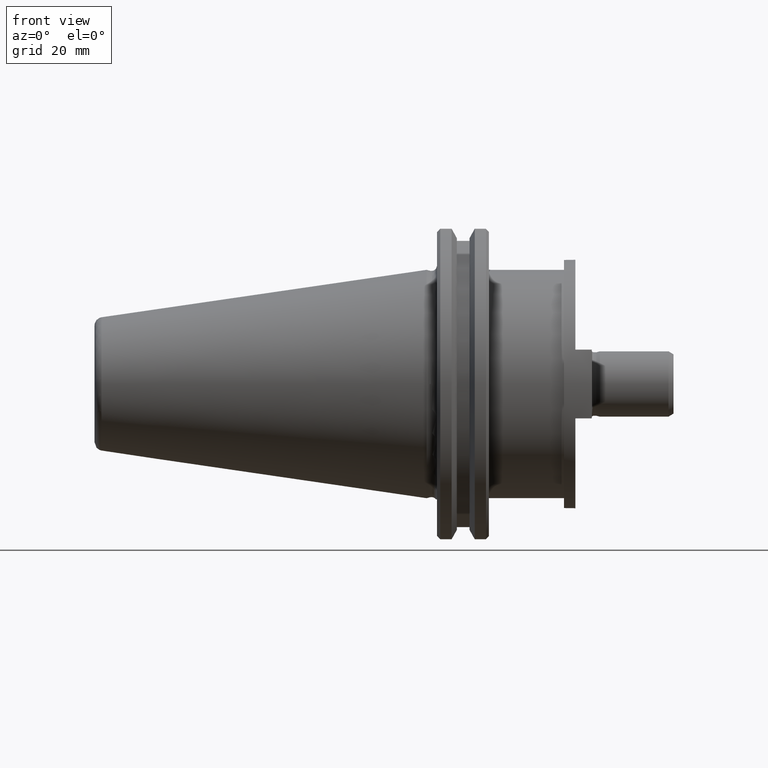
[diagram: clean part render]
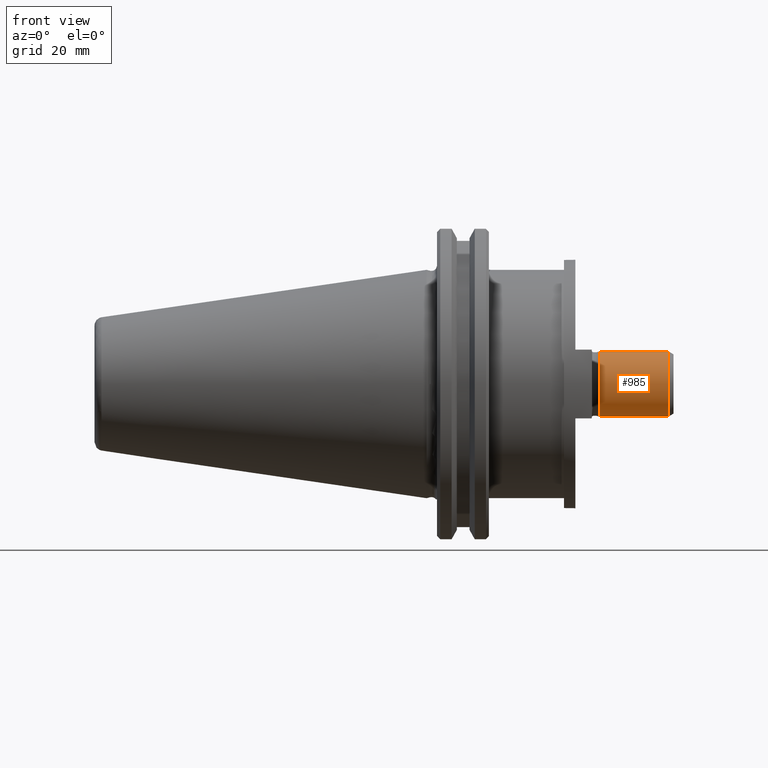
[diagram: same view with one face highlighted and labeled with its STEP entity id]
A machine part, front view. The second image highlights one B-rep face of the part: STEP entity #985.
In plain terms, the highlighted cylindrical surface (bore or boss wall) has radius 10 mm, axis along (1, 0, 0).
Its self-contained STEP definition (entity closure, byte-faithful):
#42=CYLINDRICAL_SURFACE('',#1133,10.);
#113=FACE_OUTER_BOUND('',#178,.T.);
#178=EDGE_LOOP('',(#896,#897,#898,#899,#900));
#250=CIRCLE('',#1132,10.);
#251=CIRCLE('',#1134,10.);
#252=CIRCLE('',#1135,10.);
#313=LINE('',#1783,#374);
#374=VECTOR('',#1456,10.);
#474=VERTEX_POINT('',#1775);
#475=VERTEX_POINT('',#1779);
#476=VERTEX_POINT('',#1780);
#614=EDGE_CURVE('',#474,#474,#250,.T.);
#616=EDGE_CURVE('',#475,#476,#251,.T.);
#617=EDGE_CURVE('',#476,#475,#252,.T.);
#618=EDGE_CURVE('',#476,#474,#313,.T.);
#896=ORIENTED_EDGE('',*,*,#616,.F.);
#897=ORIENTED_EDGE('',*,*,#617,.F.);
#898=ORIENTED_EDGE('',*,*,#618,.T.);
#899=ORIENTED_EDGE('',*,*,#614,.F.);
#900=ORIENTED_EDGE('',*,*,#618,.F.);
#985=ADVANCED_FACE('',(#113),#42,.T.);
#1132=AXIS2_PLACEMENT_3D('',#1776,#1447,#1448);
#1133=AXIS2_PLACEMENT_3D('',#1778,#1450,#1451);
#1134=AXIS2_PLACEMENT_3D('',#1781,#1452,#1453);
#1135=AXIS2_PLACEMENT_3D('',#1782,#1454,#1455);
#1447=DIRECTION('center_axis',(-1.,0.,0.));
#1448=DIRECTION('ref_axis',(0.,0.,1.));
#1450=DIRECTION('center_axis',(1.,0.,0.));
#1451=DIRECTION('ref_axis',(0.,0.,-1.));
#1452=DIRECTION('center_axis',(1.,0.,0.));
#1453=DIRECTION('ref_axis',(0.,-1.,0.));
#1454=DIRECTION('center_axis',(1.,0.,0.));
#1455=DIRECTION('ref_axis',(0.,-1.,0.));
#1456=DIRECTION('',(-1.,0.,0.));
#1775=CARTESIAN_POINT('',(53.,0.,10.));
#1776=CARTESIAN_POINT('Origin',(53.,-1.06581410364E-14,0.));
#1778=CARTESIAN_POINT('Origin',(36.,-1.084307601755E-14,0.));
#1779=CARTESIAN_POINT('',(74.,10.,0.));
#1780=CARTESIAN_POINT('',(74.,-1.20677228166974E-14,10.));
#1781=CARTESIAN_POINT('Origin',(74.,-1.084307601755E-14,0.));
#1782=CARTESIAN_POINT('Origin',(74.,-1.084307601755E-14,0.));
#1783=CARTESIAN_POINT('',(36.,-1.20677228166974E-14,10.));